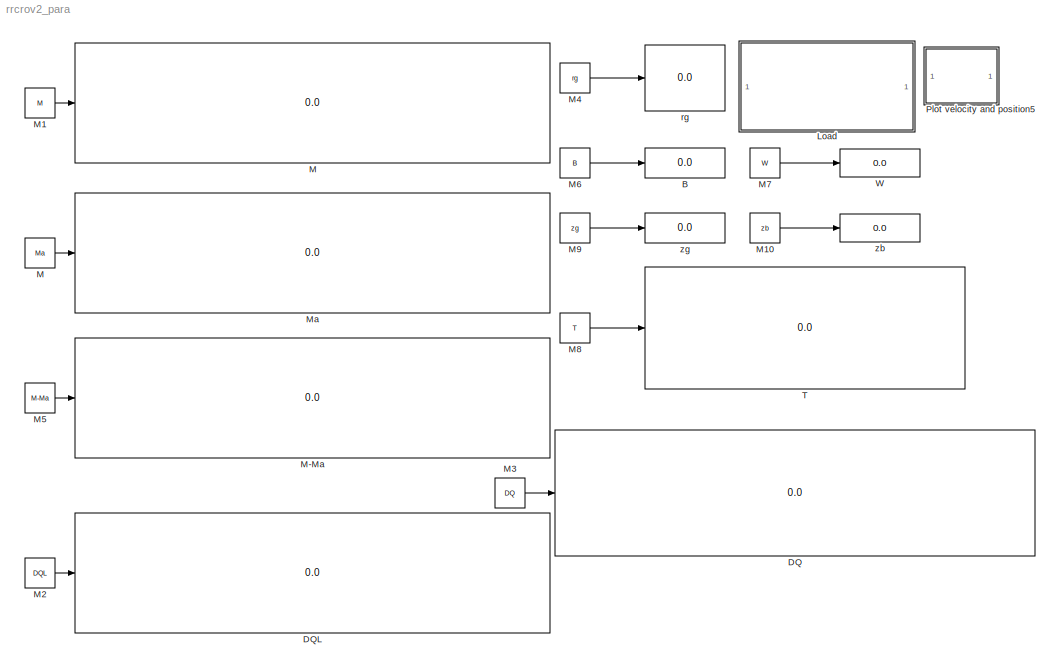
MODEL rrcrov2_para
KIND model
BLOCK [SubSystem]  Load  
  AncestorBlock = rov_design_analysis/ROV Controller\nDesign\nApplications/ Load RRCROV2 parameters
  MaskDisplay = disp('Double-click \\n to \\n Load the\\n RRCROV\\n parameters')
  MaskIconFrame = on
  MaskIconOpaque = on
  MaskIconRotate = none
  MaskIconUnits = autoscale
  MinAlgLoopOccurrences = off
  OpenFcn = clc                                                  \ncd <path> ;\nload rrcrovf;                                        \n
  Ports = []
  RTWSystemCode = Auto
  TreatAsAtomicUnit = off
BLOCK [Display] B
  Decimation = 1
  Ports = [1]
BLOCK [Display] DQ 
  Decimation = 1
  Ports = [1]
BLOCK [Display] DQL
  Decimation = 1
  Ports = [1]
BLOCK [Constant] M
  Value = Ma
BLOCK [Display] M   
  Decimation = 1
  Ports = [1]
BLOCK [Display] M-Ma
  Decimation = 1
  Ports = [1]
BLOCK [Constant] M1
  Value = M
BLOCK [Constant] M10
  Value = zb
BLOCK [Constant] M2
  Value = DQL
BLOCK [Constant] M3
  Value = DQ
BLOCK [Constant] M4
  Value = rg
BLOCK [Constant] M5
  Value = M-Ma
BLOCK [Constant] M6
  Value = B
BLOCK [Constant] M7
  Value = W
BLOCK [Constant] M8
  Value = T
BLOCK [Constant] M9
  Value = zg
BLOCK [Display] Ma
  Decimation = 1
  Ports = [1]
BLOCK [SubSystem] Plot velocity and position5
  AncestorBlock = rov_design_analysis/ROV Controller\nDesign\nApplications/Plot velocity and position
  MaskDisplay = disp('Show')
  MaskIconFrame = on
  MaskIconOpaque = on
  MaskIconRotate = none
  MaskIconUnits = autoscale
  MinAlgLoopOccurrences = off
  OpenFcn = clc                                             \ncd <path>('rrcrov2_para')
  Ports = []
  RTWSystemCode = Auto
  TreatAsAtomicUnit = off
BLOCK [Display] T
  Decimation = 1
  Ports = [1]
BLOCK [Display] W
  Decimation = 1
  Ports = [1]
BLOCK [Display] rg
  Decimation = 1
  Ports = [1]
BLOCK [Display] zb
  Decimation = 1
  Ports = [1]
BLOCK [Display] zg
  Decimation = 1
  Ports = [1]
LINE M10:1 -> zb:1
LINE M1:1 -> M   :1
LINE M2:1 -> DQL:1
LINE M3:1 -> DQ :1
LINE M4:1 -> rg:1
LINE M5:1 -> M-Ma:1
LINE M6:1 -> B:1
LINE M7:1 -> W:1
LINE M8:1 -> T:1
LINE M9:1 -> zg:1
LINE M:1 -> Ma:1
note: 2 file-system paths scrubbed to <path> (not preserved elsewhere — flat text is the only slx artifact)
